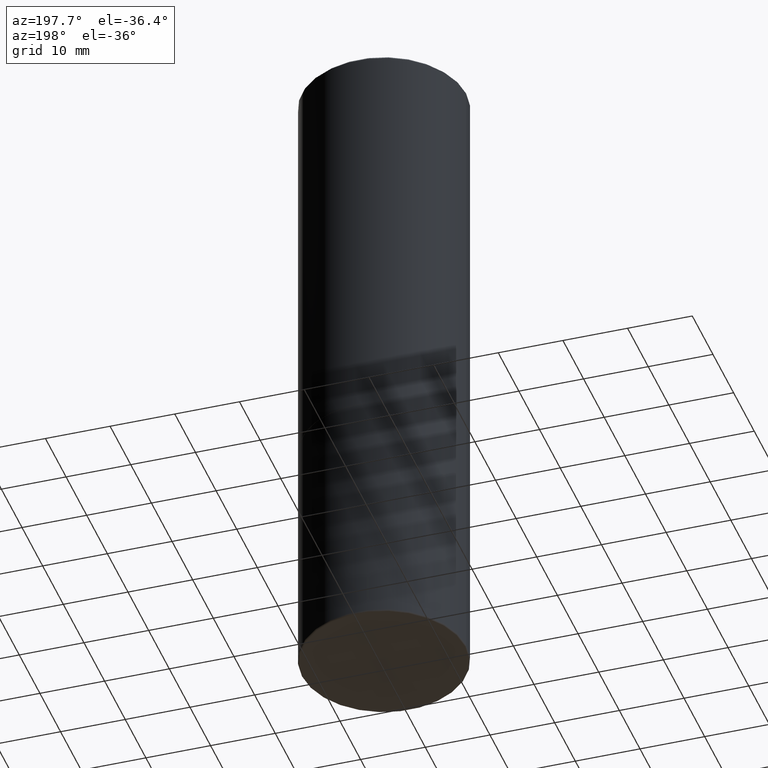
[diagram: clean part render]
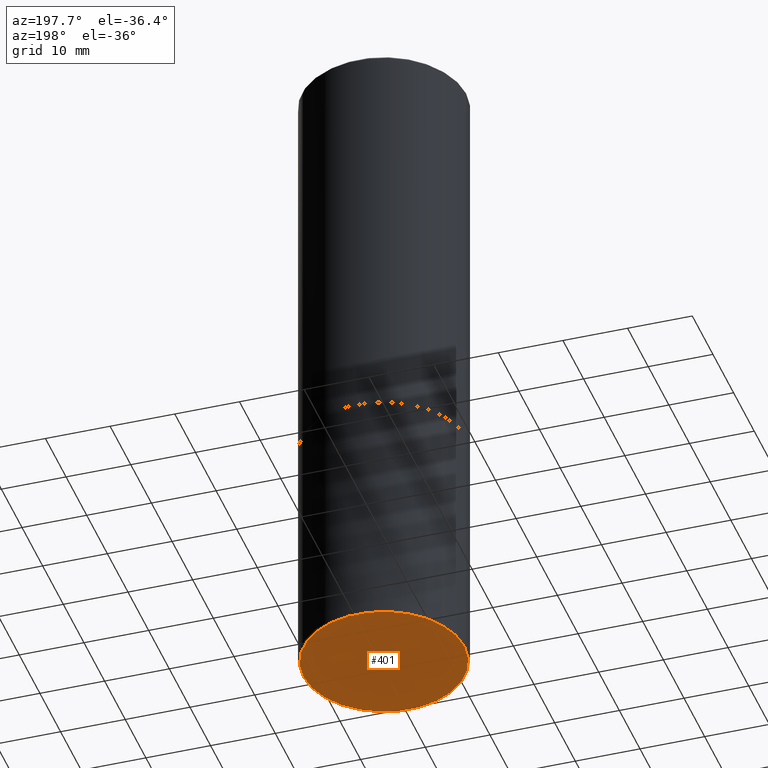
[diagram: same view with one face highlighted and labeled with its STEP entity id]
A machine part, auxiliary view. The second image highlights one B-rep face of the part: STEP entity #401.
In plain terms, the highlighted planar face has unit normal (0, -0, -1).
Its self-contained STEP definition (entity closure, byte-faithful):
#12 = VERTEX_POINT ( 'NONE', #157 ) ;
#50 = FACE_OUTER_BOUND ( 'NONE', #417, .T. ) ;
#63 = CIRCLE ( 'NONE', #186, 0.4899999999999999911 ) ;
#111 = DIRECTION ( 'NONE',  ( 2.438088387897960049E-29, -3.491481338843145188E-15, -1.000000000000000000 ) ) ;
#113 = PLANE ( 'NONE',  #355 ) ;
#114 = ORIENTED_EDGE ( 'NONE', *, *, #220, .F. ) ;
#150 = EDGE_CURVE ( 'NONE', #368, #12, #222, .T. ) ;
#157 = CARTESIAN_POINT ( 'NONE',  ( 0.4899999999999999911, -1.738757706743885081E-14, -4.000000000000000000 ) ) ;
#170 = AXIS2_PLACEMENT_3D ( 'NONE', #395, #268, #272 ) ;
#171 = CARTESIAN_POINT ( 'NONE',  ( 9.781875224740546387E-29, -1.396592535537258233E-14, -4.000000000000000000 ) ) ;
#186 = AXIS2_PLACEMENT_3D ( 'NONE', #171, #233, #392 ) ;
#220 = EDGE_CURVE ( 'NONE', #12, #368, #63, .T. ) ;
#222 = CIRCLE ( 'NONE', #170, 0.4899999999999999911 ) ;
#233 = DIRECTION ( 'NONE',  ( -2.445468806185136597E-29, 3.491481338843145583E-15, 1.000000000000000000 ) ) ;
#253 = CARTESIAN_POINT ( 'NONE',  ( -0.4899999999999999911, -1.043128140666586904E-14, -4.000000000000000000 ) ) ;
#268 = DIRECTION ( 'NONE',  ( -2.445468806185136597E-29, 3.491481338843145583E-15, 1.000000000000000000 ) ) ;
#272 = DIRECTION ( 'NONE',  ( 1.000000000000000000, -6.982962677686265922E-15, 0.000000000000000000 ) ) ;
#307 = DIRECTION ( 'NONE',  ( -1.000000000000000000, 6.982962677686265922E-15, -4.876176775795935793E-29 ) ) ;
#355 = AXIS2_PLACEMENT_3D ( 'NONE', #396, #111, #307 ) ;
#368 = VERTEX_POINT ( 'NONE', #253 ) ;
#392 = DIRECTION ( 'NONE',  ( 1.000000000000000000, -6.982962677686265922E-15, 0.000000000000000000 ) ) ;
#395 = CARTESIAN_POINT ( 'NONE',  ( 9.781875224740546387E-29, -1.396592535537258233E-14, -4.000000000000000000 ) ) ;
#396 = CARTESIAN_POINT ( 'NONE',  ( 9.781875224740546387E-29, -1.396592535537258233E-14, -4.000000000000000000 ) ) ;
#401 = ADVANCED_FACE ( 'NONE', ( #50 ), #113, .T. ) ;
#405 = ORIENTED_EDGE ( 'NONE', *, *, #150, .F. ) ;
#417 = EDGE_LOOP ( 'NONE', ( #114, #405 ) ) ;